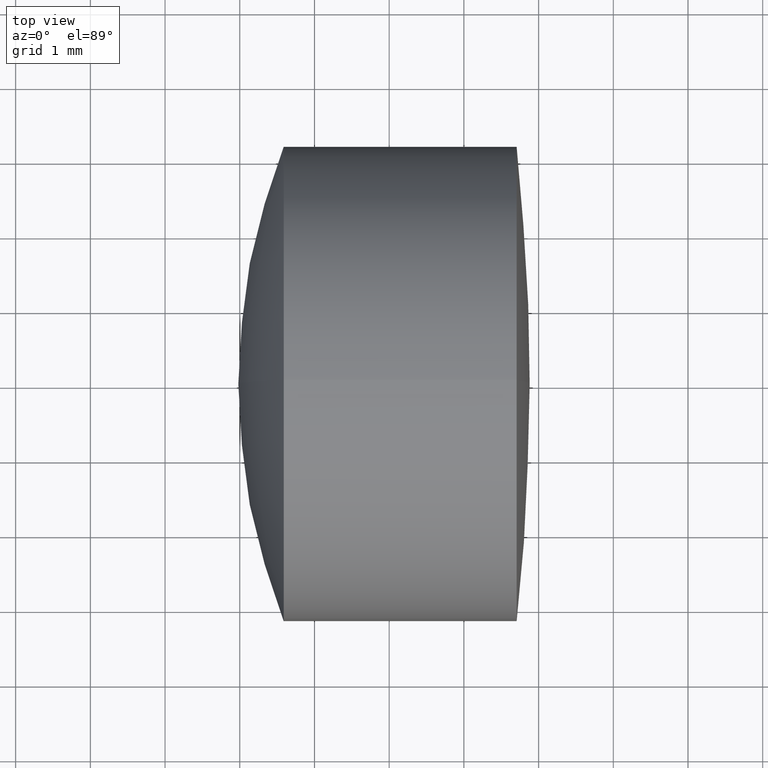
[diagram: clean part render]
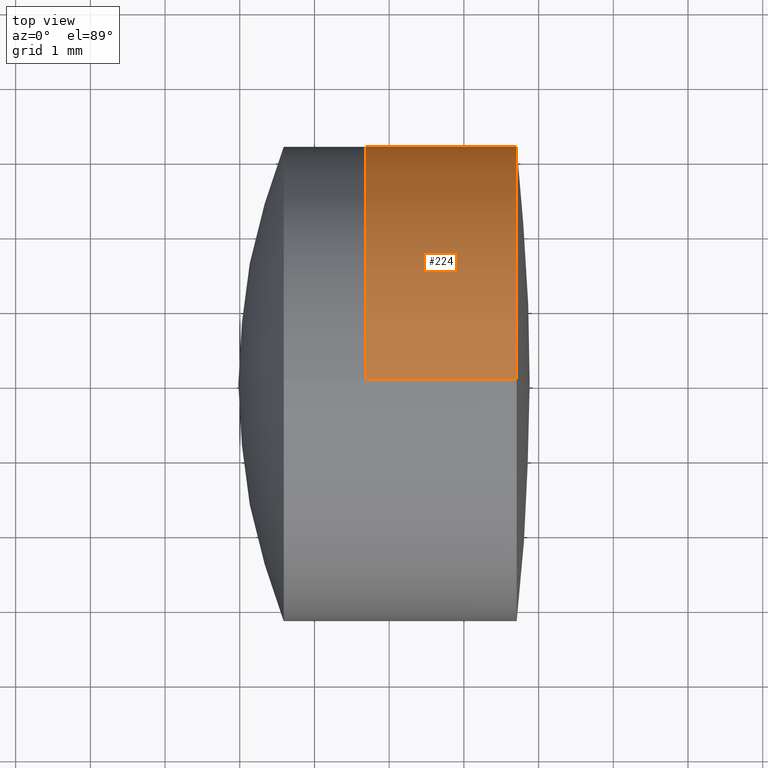
[diagram: same view with one face highlighted and labeled with its STEP entity id]
A machine part, top view. The second image highlights one B-rep face of the part: STEP entity #224.
In plain terms, the highlighted cylindrical surface (partial cylindrical patch) has radius 3.175 mm, axis along (-1, -0, -0).
Its self-contained STEP definition (entity closure, byte-faithful):
#26 = DIRECTION ( 'NONE',  ( -1.000000000000000000, -0.0000000000000000000, -0.0000000000000000000 ) ) ;
#30 = LINE ( 'NONE', #165, #113 ) ;
#39 = EDGE_CURVE ( 'NONE', #120, #286, #77, .T. ) ;
#51 = CARTESIAN_POINT ( 'NONE',  ( -0.5519199926577972300, 0.0000000000000000000, 0.0000000000000000000 ) ) ;
#52 = ORIENTED_EDGE ( 'NONE', *, *, #207, .T. ) ;
#56 = ORIENTED_EDGE ( 'NONE', *, *, #183, .T. ) ;
#57 = AXIS2_PLACEMENT_3D ( 'NONE', #110, #86, #319 ) ;
#67 = CARTESIAN_POINT ( 'NONE',  ( 261.6806597883319800, 0.0000000000000000000, 0.0000000000000000000 ) ) ;
#76 = CARTESIAN_POINT ( 'NONE',  ( -0.5519199926577972300, 0.0000000000000000000, 3.175000000000000700 ) ) ;
#77 = CIRCLE ( 'NONE', #201, 3.175000000000000700 ) ;
#78 = ORIENTED_EDGE ( 'NONE', *, *, #260, .F. ) ;
#86 = DIRECTION ( 'NONE',  ( -1.000000000000000000, -0.0000000000000000000, -0.0000000000000000000 ) ) ;
#110 = CARTESIAN_POINT ( 'NONE',  ( 263.7063849064184100, 0.0000000000000000000, 0.0000000000000000000 ) ) ;
#113 = VECTOR ( 'NONE', #26, 1000.000000000000000 ) ;
#120 = VERTEX_POINT ( 'NONE', #239 ) ;
#129 = ORIENTED_EDGE ( 'NONE', *, *, #39, .F. ) ;
#135 = VECTOR ( 'NONE', #178, 1000.000000000000000 ) ;
#165 = CARTESIAN_POINT ( 'NONE',  ( -0.5519199926577972300, 3.888253587292847100E-016, -3.175000000000000700 ) ) ;
#169 = FACE_OUTER_BOUND ( 'NONE', #272, .T. ) ;
#178 = DIRECTION ( 'NONE',  ( -1.000000000000000000, -0.0000000000000000000, -0.0000000000000000000 ) ) ;
#182 = DIRECTION ( 'NONE',  ( 0.0000000000000000000, 0.0000000000000000000, 1.000000000000000000 ) ) ;
#183 = EDGE_CURVE ( 'NONE', #323, #342, #291, .T. ) ;
#199 = DIRECTION ( 'NONE',  ( 0.0000000000000000000, 0.0000000000000000000, 1.000000000000000000 ) ) ;
#201 = AXIS2_PLACEMENT_3D ( 'NONE', #67, #230, #199 ) ;
#205 = LINE ( 'NONE', #76, #135 ) ;
#207 = EDGE_CURVE ( 'NONE', #342, #286, #30, .T. ) ;
#220 = DIRECTION ( 'NONE',  ( -1.000000000000000000, -0.0000000000000000000, -0.0000000000000000000 ) ) ;
#224 = ADVANCED_FACE ( 'NONE', ( #169 ), #309, .T. ) ;
#230 = DIRECTION ( 'NONE',  ( -1.000000000000000000, -0.0000000000000000000, -0.0000000000000000000 ) ) ;
#239 = CARTESIAN_POINT ( 'NONE',  ( 261.6806597883319800, 0.0000000000000000000, 3.175000000000000700 ) ) ;
#256 = CARTESIAN_POINT ( 'NONE',  ( 263.7063849064184100, 0.0000000000000000000, 3.175000000000000700 ) ) ;
#260 = EDGE_CURVE ( 'NONE', #323, #120, #205, .T. ) ;
#272 = EDGE_LOOP ( 'NONE', ( #56, #52, #129, #78 ) ) ;
#286 = VERTEX_POINT ( 'NONE', #288 ) ;
#288 = CARTESIAN_POINT ( 'NONE',  ( 261.6806597883319800, 3.888253587292847600E-016, -3.175000000000000700 ) ) ;
#291 = CIRCLE ( 'NONE', #57, 3.175000000000000700 ) ;
#293 = AXIS2_PLACEMENT_3D ( 'NONE', #51, #220, #182 ) ;
#309 = CYLINDRICAL_SURFACE ( 'NONE', #293, 3.175000000000000700 ) ;
#319 = DIRECTION ( 'NONE',  ( 0.0000000000000000000, 0.0000000000000000000, 1.000000000000000000 ) ) ;
#323 = VERTEX_POINT ( 'NONE', #256 ) ;
#333 = CARTESIAN_POINT ( 'NONE',  ( 263.7063849064184100, 3.888253587292847100E-016, -3.175000000000000700 ) ) ;
#342 = VERTEX_POINT ( 'NONE', #333 ) ;